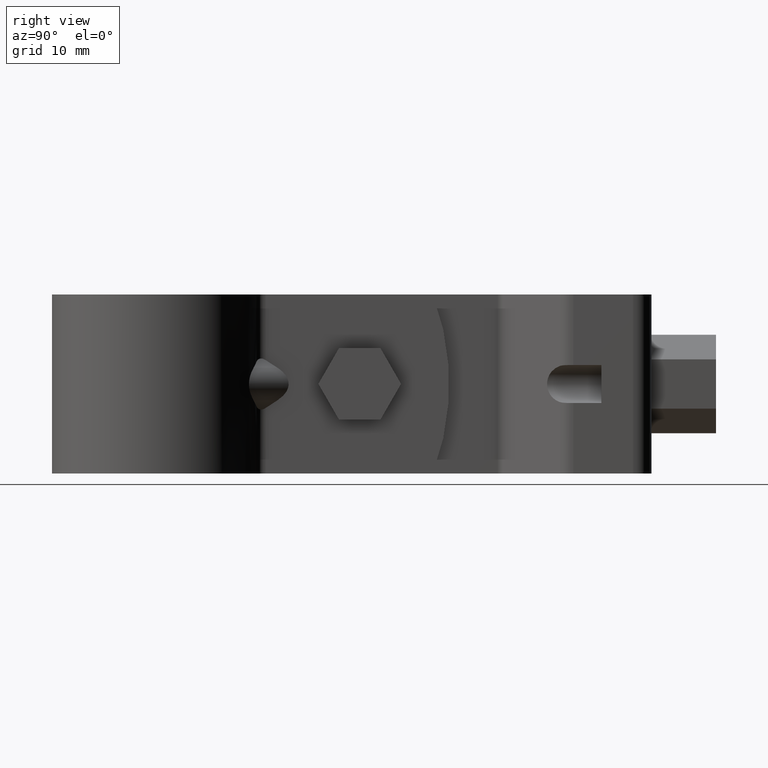
[diagram: clean part render]
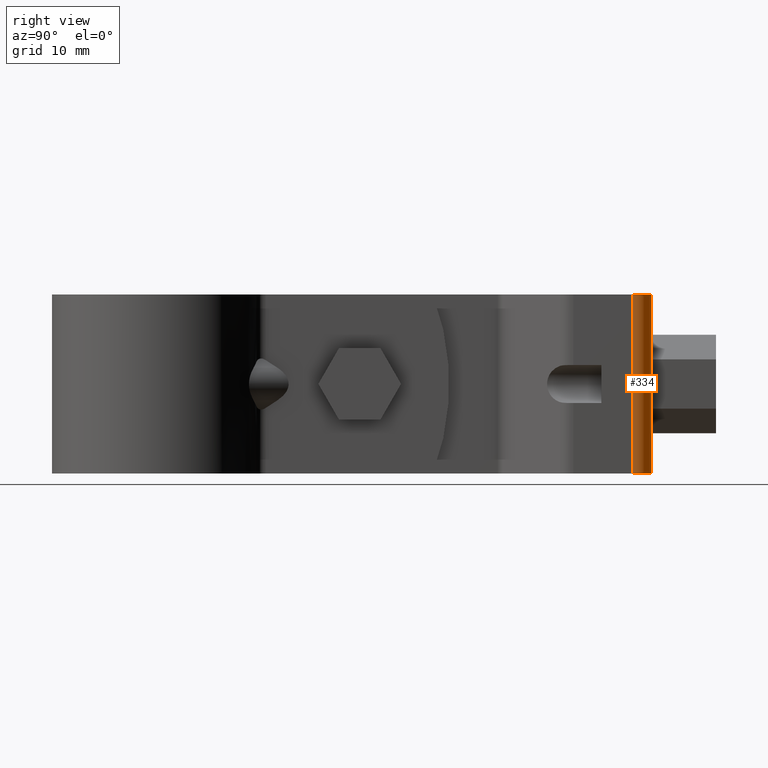
[diagram: same view with one face highlighted and labeled with its STEP entity id]
A machine part, right view. The second image highlights one B-rep face of the part: STEP entity #334.
In plain terms, the highlighted cylindrical surface (edge-blend (fillet) strip) has radius 2.6 mm, axis along (-0, 0, -1).
Its self-contained STEP definition (entity closure, byte-faithful):
#334 = ADVANCED_FACE( '', ( #538 ), #539, .T. );
#538 = FACE_OUTER_BOUND( '', #810, .T. );
#539 = CYLINDRICAL_SURFACE( '', #811, 2.59999999999999 );
#810 = EDGE_LOOP( '', ( #1485, #1486, #1487, #1488 ) );
#811 = AXIS2_PLACEMENT_3D( '', #1489, #1490, #1491 );
#1485 = ORIENTED_EDGE( '', *, *, #2123, .F. );
#1486 = ORIENTED_EDGE( '', *, *, #2124, .F. );
#1487 = ORIENTED_EDGE( '', *, *, #2116, .T. );
#1488 = ORIENTED_EDGE( '', *, *, #2125, .T. );
#1489 = CARTESIAN_POINT( '', ( 9.65000000345030, 66.2129671568643, -12.4999986181080 ) );
#1490 = DIRECTION( '', ( -1.87698704392248E-011, 9.98350074832307E-009, -1.00000000000000 ) );
#1491 = DIRECTION( '', ( 1.39877502405819E-011, 1.00000000000000, 9.98350074832280E-009 ) );
#2116 = EDGE_CURVE( '', #2564, #2562, #2565, .T. );
#2123 = EDGE_CURVE( '', #2577, #2578, #2579, .T. );
#2124 = EDGE_CURVE( '', #2564, #2577, #2580, .T. );
#2125 = EDGE_CURVE( '', #2562, #2578, #2581, .T. );
#2562 = VERTEX_POINT( '', #3315 );
#2564 = VERTEX_POINT( '', #3318 );
#2565 = CIRCLE( '', #3319, 2.59999999999999 );
#2577 = VERTEX_POINT( '', #3335 );
#2578 = VERTEX_POINT( '', #3336 );
#2579 = CIRCLE( '', #3337, 2.59999999999999 );
#2580 = LINE( '', #3338, #3339 );
#2581 = LINE( '', #3340, #3341 );
#3315 = CARTESIAN_POINT( '', ( 9.65000000348667, 68.8129671568643, -12.4999985921509 ) );
#3318 = CARTESIAN_POINT( '', ( 12.2500000034503, 66.2129671568279, -12.4999986181568 ) );
#3319 = AXIS2_PLACEMENT_3D( '', #3989, #3990, #3991 );
#3335 = CARTESIAN_POINT( '', ( 12.2500000039195, 66.2129669072404, 12.5000013818432 ) );
#3336 = CARTESIAN_POINT( '', ( 9.65000000395592, 68.8129669072768, 12.5000014078491 ) );
#3337 = AXIS2_PLACEMENT_3D( '', #4002, #4003, #4004 );
#3338 = CARTESIAN_POINT( '', ( 12.2500000034503, 66.2129671568279, -12.4999986181568 ) );
#3339 = VECTOR( '', #4005, 1000.00000000000 );
#3340 = CARTESIAN_POINT( '', ( 9.65000000348667, 68.8129671568643, -12.4999985921509 ) );
#3341 = VECTOR( '', #4006, 1000.00000000000 );
#3989 = CARTESIAN_POINT( '', ( 9.65000000345030, 66.2129671568643, -12.4999986181080 ) );
#3990 = DIRECTION( '', ( 1.87698704392248E-011, -9.98350074832307E-009, 1.00000000000000 ) );
#3991 = DIRECTION( '', ( 1.00000000000000, -1.39877500531929E-011, -1.87698705788715E-011 ) );
#4002 = CARTESIAN_POINT( '', ( 9.65000000391955, 66.2129669072768, 12.5000013818920 ) );
#4003 = DIRECTION( '', ( 1.87698704392248E-011, -9.98350074832307E-009, 1.00000000000000 ) );
#4004 = DIRECTION( '', ( 1.00000000000000, -1.39877500531929E-011, -1.87698705788715E-011 ) );
#4005 = DIRECTION( '', ( 1.87698704392248E-011, -9.98350074832307E-009, 1.00000000000000 ) );
#4006 = DIRECTION( '', ( 1.87698704392248E-011, -9.98350074832307E-009, 1.00000000000000 ) );